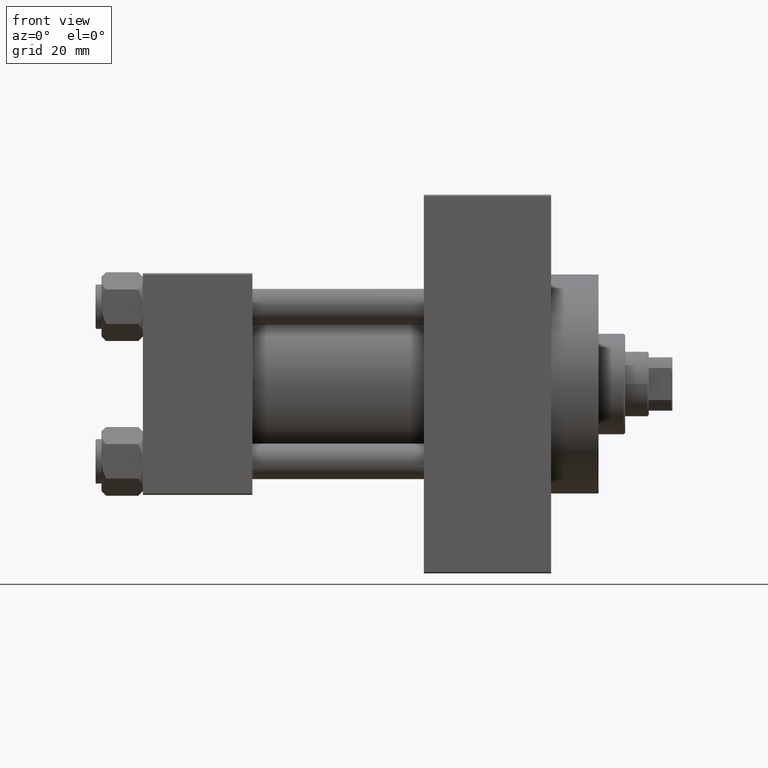
[diagram: clean part render]
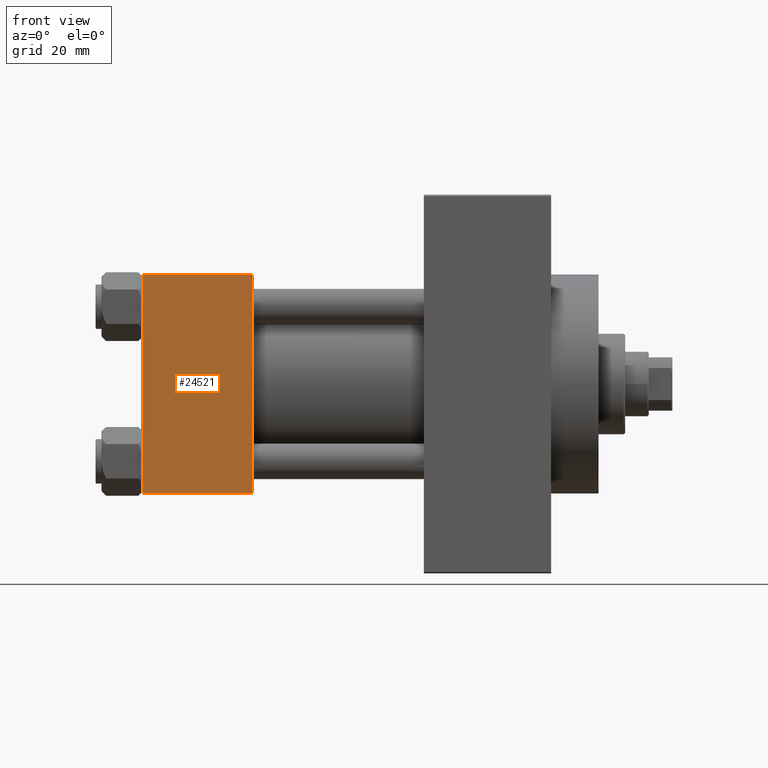
[diagram: same view with one face highlighted and labeled with its STEP entity id]
A machine part, front view. The second image highlights one B-rep face of the part: STEP entity #24521.
In plain terms, the highlighted planar face has unit normal (0, 1, 0).
Its self-contained STEP definition (entity closure, byte-faithful):
#986 = CARTESIAN_POINT ( 'NONE',  ( 0.000000000000000000, -37.50000000000000000, -37.00000000000003553 ) ) ;
#1248 = DIRECTION ( 'NONE',  ( 0.000000000000000000, 9.251858538542971581E-17, -1.000000000000000000 ) ) ;
#1862 = VECTOR ( 'NONE', #12623, 1000.000000000000000 ) ;
#4221 = EDGE_CURVE ( 'NONE', #28841, #37189, #27335, .T. ) ;
#4581 = ORIENTED_EDGE ( 'NONE', *, *, #38983, .F. ) ;
#4889 = CARTESIAN_POINT ( 'NONE',  ( 37.00000000000000000, -37.50000000000000000, -37.00000000000003553 ) ) ;
#5632 = DIRECTION ( 'NONE',  ( 0.000000000000000000, 9.251858538542971581E-17, -1.000000000000000000 ) ) ;
#6484 = VERTEX_POINT ( 'NONE', #986 ) ;
#8218 = VECTOR ( 'NONE', #1248, 1000.000000000000000 ) ;
#8913 = LINE ( 'NONE', #34898, #1862 ) ;
#9674 = LINE ( 'NONE', #25014, #8218 ) ;
#12623 = DIRECTION ( 'NONE',  ( 1.000000000000000000, 0.000000000000000000, 0.000000000000000000 ) ) ;
#12807 = CARTESIAN_POINT ( 'NONE',  ( 37.00000000000000000, -37.50000000000000711, 37.49999999999999289 ) ) ;
#18529 = ORIENTED_EDGE ( 'NONE', *, *, #4221, .T. ) ;
#20419 = ORIENTED_EDGE ( 'NONE', *, *, #27525, .T. ) ;
#20976 = DIRECTION ( 'NONE',  ( -0.000000000000000000, 1.000000000000000000, 9.251858538542971581E-17 ) ) ;
#23951 = CARTESIAN_POINT ( 'NONE',  ( 0.000000000000000000, -37.50000000000000711, 36.99999999999999289 ) ) ;
#24521 = ADVANCED_FACE ( 'NONE', ( #31886 ), #40036, .F. ) ;
#24692 = LINE ( 'NONE', #46980, #38827 ) ;
#25014 = CARTESIAN_POINT ( 'NONE',  ( 37.00000000000000000, -37.50000000000000711, 37.49999999999999289 ) ) ;
#26610 = DIRECTION ( 'NONE',  ( -1.000000000000000000, 0.000000000000000000, 0.000000000000000000 ) ) ;
#27335 = LINE ( 'NONE', #41465, #28079 ) ;
#27507 = VERTEX_POINT ( 'NONE', #4889 ) ;
#27525 = EDGE_CURVE ( 'NONE', #37189, #6484, #24692, .T. ) ;
#28079 = VECTOR ( 'NONE', #26610, 1000.000000000000000 ) ;
#28841 = VERTEX_POINT ( 'NONE', #42896 ) ;
#29510 = EDGE_LOOP ( 'NONE', ( #20419, #47481, #4581, #18529 ) ) ;
#31886 = FACE_OUTER_BOUND ( 'NONE', #29510, .T. ) ;
#34898 = CARTESIAN_POINT ( 'NONE',  ( 37.00000000000000000, -37.50000000000000000, -37.00000000000003553 ) ) ;
#36070 = DIRECTION ( 'NONE',  ( 0.000000000000000000, -9.251858538542971581E-17, 1.000000000000000000 ) ) ;
#37189 = VERTEX_POINT ( 'NONE', #23951 ) ;
#37317 = EDGE_CURVE ( 'NONE', #6484, #27507, #8913, .T. ) ;
#38827 = VECTOR ( 'NONE', #5632, 1000.000000000000000 ) ;
#38983 = EDGE_CURVE ( 'NONE', #28841, #27507, #9674, .T. ) ;
#40036 = PLANE ( 'NONE',  #41861 ) ;
#41465 = CARTESIAN_POINT ( 'NONE',  ( 37.00000000000000000, -37.50000000000000711, 36.99999999999999289 ) ) ;
#41861 = AXIS2_PLACEMENT_3D ( 'NONE', #12807, #20976, #36070 ) ;
#42896 = CARTESIAN_POINT ( 'NONE',  ( 37.00000000000000000, -37.50000000000000711, 36.99999999999999289 ) ) ;
#46980 = CARTESIAN_POINT ( 'NONE',  ( 0.000000000000000000, -37.50000000000000711, 37.49999999999999289 ) ) ;
#47481 = ORIENTED_EDGE ( 'NONE', *, *, #37317, .T. ) ;